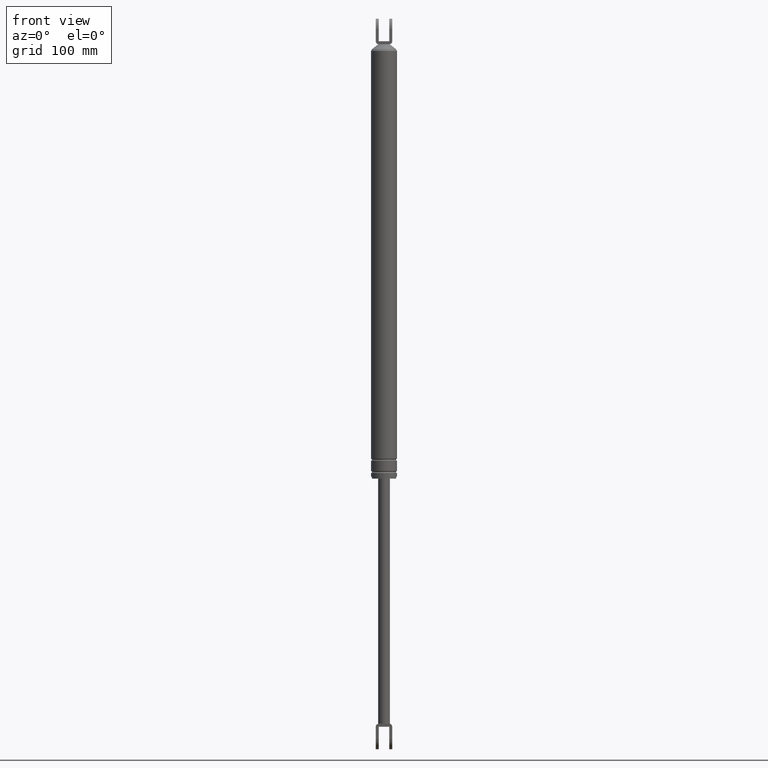
[diagram: clean part render]
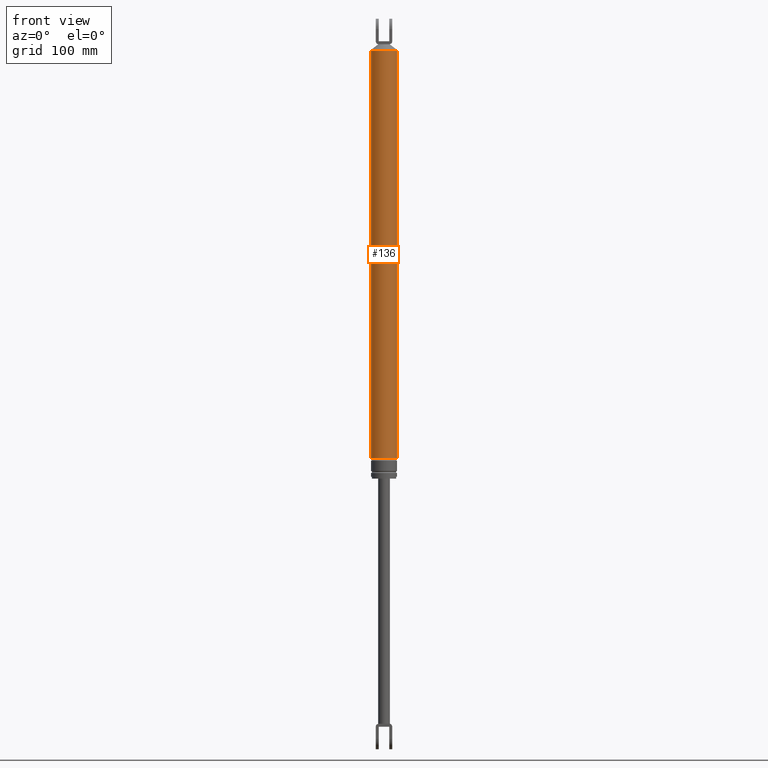
[diagram: same view with one face highlighted and labeled with its STEP entity id]
A machine part, front view. The second image highlights one B-rep face of the part: STEP entity #136.
In plain terms, the highlighted cylindrical surface (edge-blend (fillet) strip) has radius 13.7 mm, axis along (0, 0, 1).
Its self-contained STEP definition (entity closure, byte-faithful):
#136=ADVANCED_FACE('',(#421),#420,.T.);
#420=CYLINDRICAL_SURFACE('',#1018,1.37000000000E+001);
#421=FACE_OUTER_BOUND('',#1019,.T.);
#1015=CARTESIAN_POINT('',(0.00000000000E+000,0.00000000000E+000,1.07100000000E+003));
#1016=DIRECTION('',(-0.00000000000E+000,-0.00000000000E+000,1.00000000000E+000));
#1017=DIRECTION('',(1.00000000000E+000,0.00000000000E+000,0.00000000000E+000));
#1018=AXIS2_PLACEMENT_3D('',#1015,#1016,#1017);
#1019=EDGE_LOOP('',(#1514,#1515,#1516,#1517));
#1514=ORIENTED_EDGE('',*,*,#1769,.F.);
#1515=ORIENTED_EDGE('',*,*,#1766,.T.);
#1516=ORIENTED_EDGE('',*,*,#1762,.T.);
#1517=ORIENTED_EDGE('',*,*,#1768,.F.);
#1762=EDGE_CURVE('',#2282,#2283,#2284,.T.);
#1766=EDGE_CURVE('',#2308,#2282,#2309,.T.);
#1768=EDGE_CURVE('',#2315,#2283,#2322,.T.);
#1769=EDGE_CURVE('',#2308,#2315,#2328,.T.);
#2282=VERTEX_POINT('',#3148);
#2283=VERTEX_POINT('',#3149);
#2284=CIRCLE('',#3153,1.37000000000E+001);
#2308=VERTEX_POINT('',#3162);
#2309=(BOUNDED_CURVE() B_SPLINE_CURVE(1,(#3163,#3164),.UNSPECIFIED.,.F.,.F.) B_SPLINE_CURVE_WITH_KNOTS((2,2),(2.21729504881E-002,9.77827049451E-001),.UNSPECIFIED.) CURVE() GEOMETRIC_REPRESENTATION_ITEM() RATIONAL_B_SPLINE_CURVE((1.00000000000E+000,1.00000000000E+000)) REPRESENTATION_ITEM('') );
#2315=VERTEX_POINT('',#3165);
#2322=(BOUNDED_CURVE() B_SPLINE_CURVE(1,(#3170,#3171),.UNSPECIFIED.,.F.,.F.) B_SPLINE_CURVE_WITH_KNOTS((2,2),(2.21729505263E-002,9.77827049474E-001),.UNSPECIFIED.) CURVE() GEOMETRIC_REPRESENTATION_ITEM() RATIONAL_B_SPLINE_CURVE((7.50000000000E-001,7.50000000000E-001)) REPRESENTATION_ITEM('') );
#2328=CIRCLE('',#3175,1.37000000000E+001);
#3148=CARTESIAN_POINT('',(1.37000000000E+001,0.00000000000E+000,5.01999969000E+002));
#3149=CARTESIAN_POINT('',(-1.37000000000E+001,0.00000000000E+000,5.01999969000E+002));
#3150=CARTESIAN_POINT('',(-5.68434188608E-014,0.00000000000E+000,5.01999969000E+002));
#3151=DIRECTION('',(-0.00000000000E+000,0.00000000000E+000,-1.00000000000E+000));
#3152=DIRECTION('',(-1.00000000000E+000,-1.22460635382E-016,0.00000000000E+000));
#3153=AXIS2_PLACEMENT_3D('',#3150,#3151,#3152);
#3162=CARTESIAN_POINT('',(1.37000000000E+001,0.00000000000E+000,7.10000000000E+001));
#3163=CARTESIAN_POINT('',(1.37000000000E+001,0.00000000000E+000,7.09999999828E+001));
#3164=CARTESIAN_POINT('',(1.37000000000E+001,0.00000000000E+000,5.01999968990E+002));
#3165=CARTESIAN_POINT('',(-1.37000000000E+001,0.00000000000E+000,7.10000000000E+001));
#3170=CARTESIAN_POINT('',(-1.37000000000E+001,-5.92118946467E-016,7.10000000000E+001));
#3171=CARTESIAN_POINT('',(-1.37000000000E+001,-5.92118946467E-016,5.01999969000E+002));
#3172=CARTESIAN_POINT('',(0.00000000000E+000,0.00000000000E+000,7.10000000000E+001));
#3173=DIRECTION('',(-0.00000000000E+000,0.00000000000E+000,-1.00000000000E+000));
#3174=DIRECTION('',(-1.00000000000E+000,-1.22460635382E-016,0.00000000000E+000));
#3175=AXIS2_PLACEMENT_3D('',#3172,#3173,#3174);